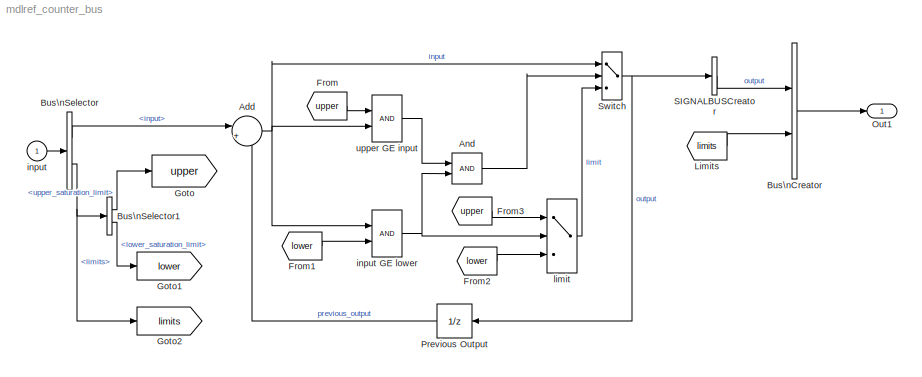
MODEL mdlref_counter_bus
KIND model
CONFIG PreLoadFcn = load mdlref_counter_bus.mat
BLOCK [Inport]  input
  BusObject = COUNTERBUS
  IconDisplay = Port number
  LatchInput = off
  Port = 1
  UseBusObject = on
BLOCK [RelationalOperator]  input GE lower
  AttributesFormatString = \\n
  Priority = 1
BLOCK [Switch]  limit
  Threshold = 0.5
BLOCK [Sum] Add
  IconShape = round
  InputSameDT = off
  Inputs = |++
  OutDataTypeMode = Inherit via internal rule
  OutScaling = 2^-10
  Ports = [2, 1]
  SaturateOnIntegerOverflow = off
BLOCK [Logic] And
  Ports = [2, 1]
BLOCK [BusCreator] Bus\nCreator
  BusObject = COUNTERBUS
  DialogController = Simulink.DDGSource_Bus
  DisplayOption = bar
  Inputs = 'output','limits'
  Ports = [2, 1]
  UseBusObject = on
BLOCK [BusSelector] Bus\nSelector
  DialogController = Simulink.DDGSource_Bus
  OutputSignals = inputsignal.input,limits
  Ports = [1, 2]
BLOCK [BusSelector] Bus\nSelector1
  DialogController = Simulink.DDGSource_Bus
  OutputSignals = upper_saturation_limit,lower_saturation_limit
  Ports = [1, 2]
BLOCK [From] From
  DialogController = Simulink.DDGSource
  GotoTag = upper
BLOCK [From] From1
  DialogController = Simulink.DDGSource
  GotoTag = lower
BLOCK [From] From2
  DialogController = Simulink.DDGSource
  GotoTag = lower
BLOCK [From] From3
  DialogController = Simulink.DDGSource
  GotoTag = upper
BLOCK [Goto] Goto
  DialogController = Simulink.DDGSource
  GotoTag = upper
  TagVisibility = local
BLOCK [Goto] Goto1
  DialogController = Simulink.DDGSource
  GotoTag = lower
  TagVisibility = local
BLOCK [Goto] Goto2
  DialogController = Simulink.DDGSource
  GotoTag = limits
  TagVisibility = local
BLOCK [From] Limits
  DialogController = Simulink.DDGSource
  GotoTag = limits
BLOCK [Outport] Out1
  BusObject = COUNTERBUS
  BusOutputAsStruct = off
  IconDisplay = Port number
  UseBusObject = on
BLOCK [UnitDelay] Previous Output
  SampleTime = -1
BLOCK [BusCreator] SIGNALBUSCreator
  BusObject = SIGNALBUS
  DialogController = Simulink.DDGSource_Bus
  DisplayOption = bar
  Inputs = 1
  Ports = [1, 1]
  UseBusObject = on
BLOCK [Switch] Switch
  Threshold = 0.5
BLOCK [RelationalOperator] upper GE input
  AttributesFormatString = \\n
  Priority = 0
NET  input GE lower:1 ->  limit:2, And:2
LINE  input:1 -> Bus\nSelector:1
LINE  limit:1 -> Switch:3
NET Add:1 ->  input GE lower:1, Switch:1, upper GE input:2
LINE And:1 -> Switch:2
LINE Bus\nCreator:1 -> Out1:1
LINE Bus\nSelector1:1 -> Goto:1
LINE Bus\nSelector1:2 -> Goto1:1
LINE Bus\nSelector:1 -> Add:1
NET Bus\nSelector:2 -> Bus\nSelector1:1, Goto2:1
LINE From1:1 ->  input GE lower:2
LINE From2:1 ->  limit:3
LINE From3:1 ->  limit:1
LINE From:1 -> upper GE input:1
LINE Limits:1 -> Bus\nCreator:2
LINE Previous Output:1 -> Add:2
LINE SIGNALBUSCreator:1 -> Bus\nCreator:1
NET Switch:1 -> Previous Output:1, SIGNALBUSCreator:1
LINE upper GE input:1 -> And:1
note: NET lines group one-source signal fan-out (src -> all destinations, sorted); 1:1 wires keep LINE
